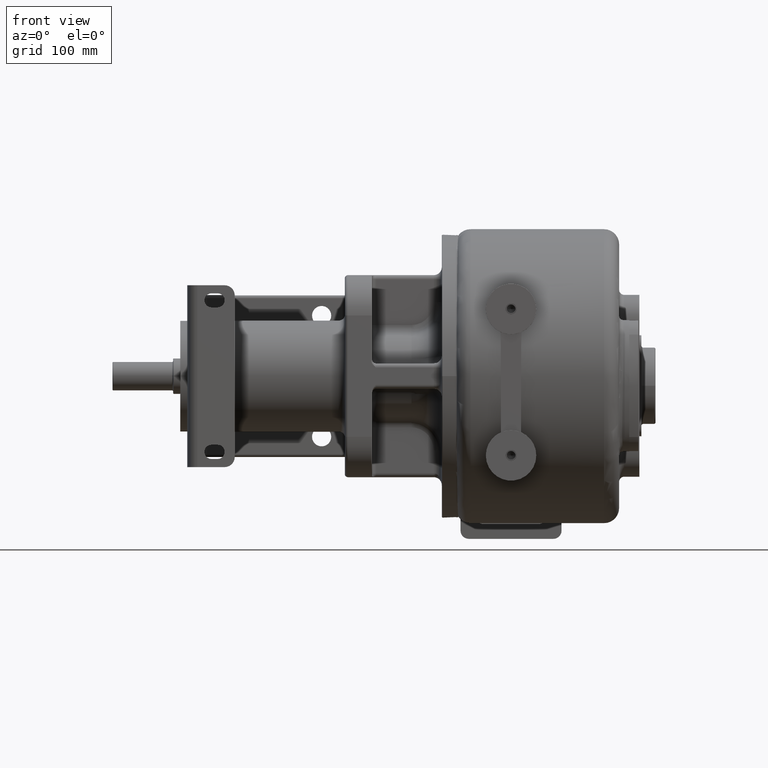
[diagram: clean part render]
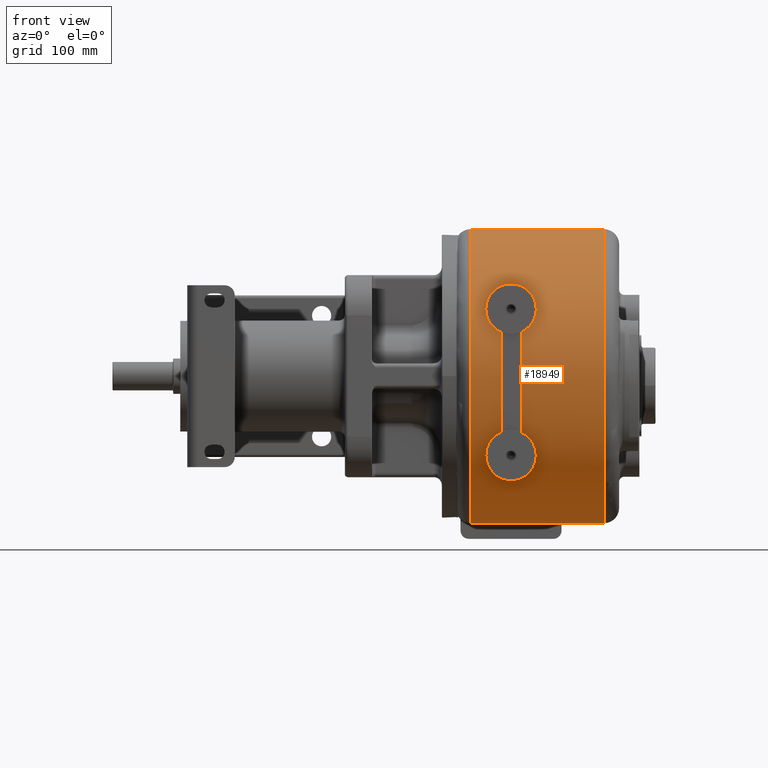
[diagram: same view with one face highlighted and labeled with its STEP entity id]
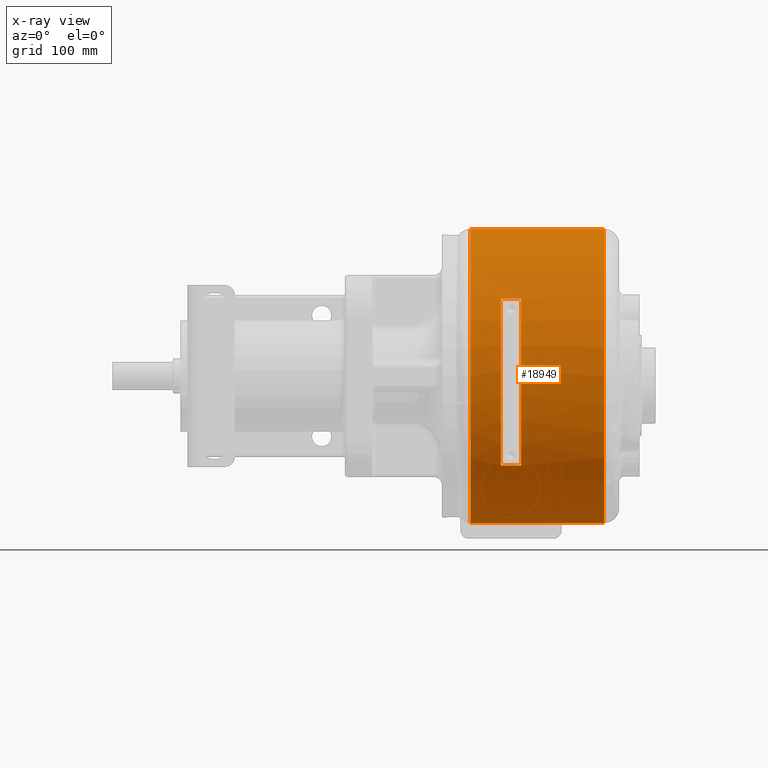
[diagram: x-ray of the same camera — body ghosted, the highlighted face saturated]
A machine part, front view. The second image highlights one B-rep face of the part: STEP entity #18949.
The next image is the same camera in x-ray: the body ghosted, the highlighted face saturated — about 0% of this face is hidden behind the body in this view.
In plain terms, the highlighted cylindrical surface (partial cylindrical patch) has radius 145.5 mm, axis along (-1, 0, 0).
Its self-contained STEP definition (entity closure, byte-faithful):
#5261=DIRECTION('',(1.E0,1.291895883200E-13,0.E0));
#5262=VECTOR('',#5261,1.32E2);
#5263=CARTESIAN_POINT('',(-4.E1,1.465E2,1.455E2));
#5264=LINE('',#5263,#5262);
#5469=CARTESIAN_POINT('',(-4.E1,1.465E2,0.E0));
#5470=DIRECTION('',(-1.E0,0.E0,0.E0));
#5471=DIRECTION('',(0.E0,0.E0,-1.E0));
#5472=AXIS2_PLACEMENT_3D('',#5469,#5470,#5471);
#5474=CARTESIAN_POINT('',(9.2E1,1.465E2,0.E0));
#5475=DIRECTION('',(1.E0,0.E0,0.E0));
#5476=DIRECTION('',(0.E0,0.E0,1.E0));
#5477=AXIS2_PLACEMENT_3D('',#5474,#5475,#5476);
#5479=DIRECTION('',(1.E0,-6.954706171228E-14,0.E0));
#5480=VECTOR('',#5479,1.32E2);
#5481=CARTESIAN_POINT('',(-4.E1,1.465E2,-1.455E2));
#5482=LINE('',#5481,#5480);
#5483=DIRECTION('',(-1.E0,0.E0,0.E0));
#5484=VECTOR('',#5483,2.E1);
#5485=CARTESIAN_POINT('',(1.E1,3.100974067048E1,-8.85E1));
#5486=LINE('',#5485,#5484);
#5487=CARTESIAN_POINT('',(1.E1,1.465E2,0.E0));
#5488=DIRECTION('',(-1.E0,0.E0,0.E0));
#5489=DIRECTION('',(0.E0,-7.937474868008E-1,-6.082474226804E-1));
#5490=AXIS2_PLACEMENT_3D('',#5487,#5488,#5489);
#5492=DIRECTION('',(-1.E0,0.E0,0.E0));
#5493=VECTOR('',#5492,2.E1);
#5494=CARTESIAN_POINT('',(1.E1,2.273409193158E1,7.65E1));
#5495=LINE('',#5494,#5493);
#5496=CARTESIAN_POINT('',(-1.E1,1.465E2,0.E0));
#5497=DIRECTION('',(-1.E0,0.E0,0.E0));
#5498=DIRECTION('',(0.E0,-7.937474868008E-1,-6.082474226804E-1));
#5499=AXIS2_PLACEMENT_3D('',#5496,#5497,#5498);
#9207=CARTESIAN_POINT('',(1.E1,3.100974067048E1,-8.85E1));
#9208=CARTESIAN_POINT('',(-1.E1,3.100974067048E1,-8.85E1));
#9209=VERTEX_POINT('',#9207);
#9210=VERTEX_POINT('',#9208);
#9211=CARTESIAN_POINT('',(1.E1,2.273409193158E1,7.65E1));
#9212=VERTEX_POINT('',#9211);
#9213=CARTESIAN_POINT('',(-1.E1,2.273409193158E1,7.65E1));
#9214=VERTEX_POINT('',#9213);
#9225=CARTESIAN_POINT('',(9.2E1,1.465E2,-1.455E2));
#9226=VERTEX_POINT('',#9225);
#9227=CARTESIAN_POINT('',(9.2E1,1.465E2,1.455E2));
#9228=VERTEX_POINT('',#9227);
#9257=CARTESIAN_POINT('',(-4.E1,1.465E2,-1.455E2));
#9258=VERTEX_POINT('',#9257);
#9259=CARTESIAN_POINT('',(-4.E1,1.465E2,1.455E2));
#9260=VERTEX_POINT('',#9259);
#18928=CARTESIAN_POINT('',(-5.5E1,1.465E2,0.E0));
#18929=DIRECTION('',(-1.E0,0.E0,0.E0));
#18930=DIRECTION('',(0.E0,0.E0,1.E0));
#18931=AXIS2_PLACEMENT_3D('',#18928,#18929,#18930);
#18932=CYLINDRICAL_SURFACE('',#18931,1.455E2);
#18933=ORIENTED_EDGE('',*,*,#18169,.T.);
#18934=ORIENTED_EDGE('',*,*,#18596,.T.);
#18935=ORIENTED_EDGE('',*,*,#16523,.T.);
#18936=ORIENTED_EDGE('',*,*,#17727,.F.);
#18937=EDGE_LOOP('',(#18933,#18934,#18935,#18936));
#18938=FACE_OUTER_BOUND('',#18937,.F.);
#18940=ORIENTED_EDGE('',*,*,#18939,.F.);
#18942=ORIENTED_EDGE('',*,*,#18941,.T.);
#18944=ORIENTED_EDGE('',*,*,#18943,.T.);
#18946=ORIENTED_EDGE('',*,*,#18945,.F.);
#18947=EDGE_LOOP('',(#18940,#18942,#18944,#18946));
#18948=FACE_BOUND('',#18947,.F.);
#18949=ADVANCED_FACE('',(#18938,#18948),#18932,.T.);
#5473=CIRCLE('',#5472,1.455E2);
#5478=CIRCLE('',#5477,1.455E2);
#5491=CIRCLE('',#5490,1.455E2);
#5500=CIRCLE('',#5499,1.455E2);
#16523=EDGE_CURVE('',#9228,#9226,#5478,.T.);
#17727=EDGE_CURVE('',#9258,#9226,#5482,.T.);
#18169=EDGE_CURVE('',#9258,#9260,#5473,.T.);
#18596=EDGE_CURVE('',#9260,#9228,#5264,.T.);
#18939=EDGE_CURVE('',#9209,#9210,#5486,.T.);
#18941=EDGE_CURVE('',#9209,#9212,#5491,.T.);
#18943=EDGE_CURVE('',#9212,#9214,#5495,.T.);
#18945=EDGE_CURVE('',#9210,#9214,#5500,.T.);